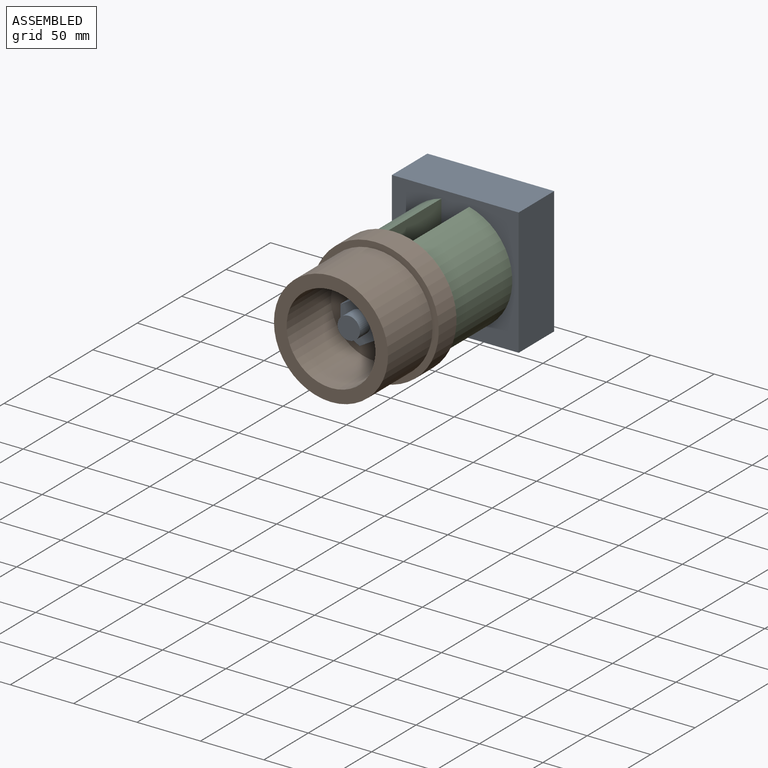
[diagram: assembled view]
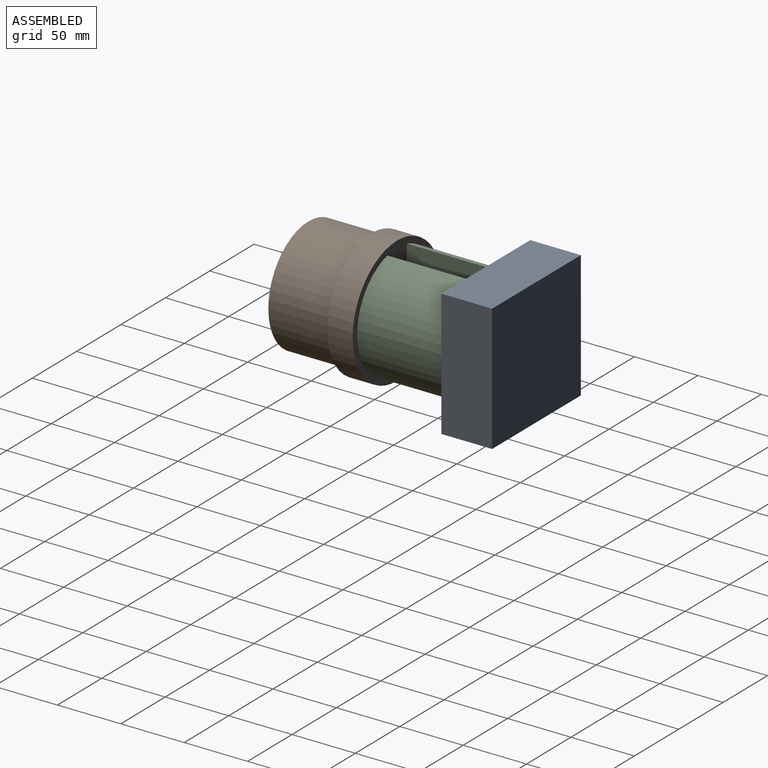
[diagram: assembled view, second angle]
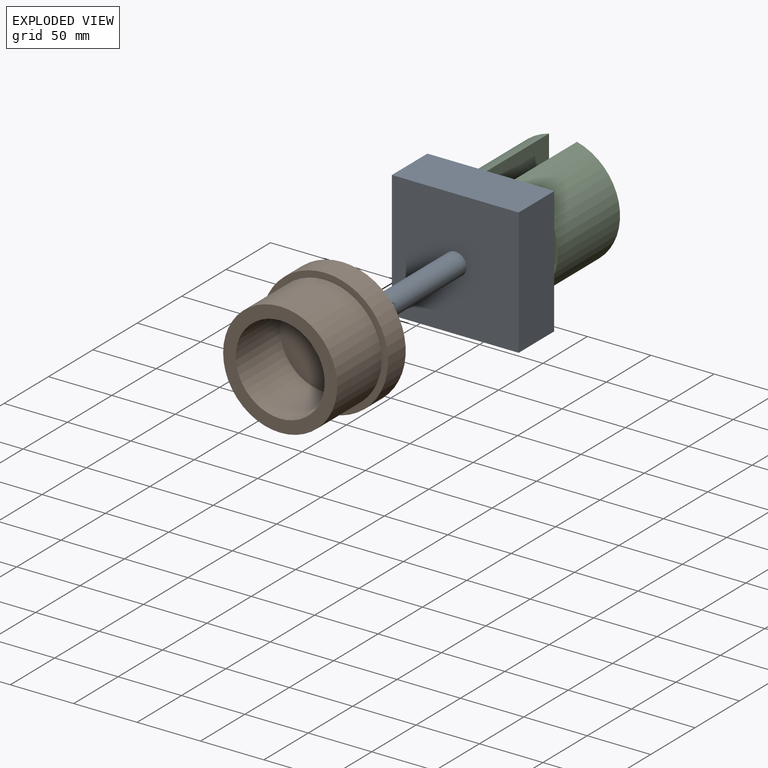
[diagram: exploded view]
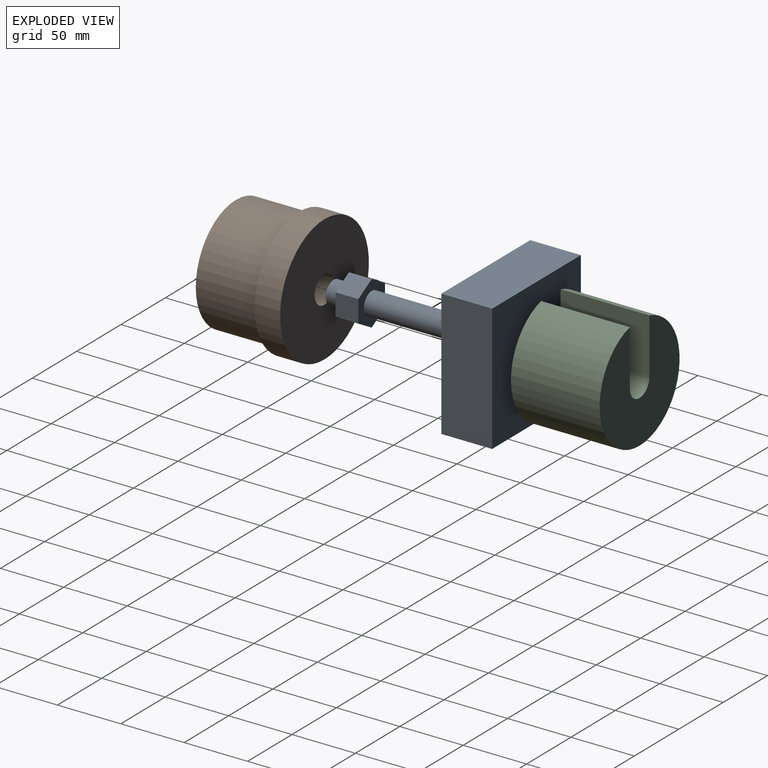
[diagram: exploded view, second angle]
ASSEMBLY  parts=3 mates=4
PART A: 17 faces, bbox 100x160x100 mm
  f0: cylinder r=8.83mm len=90mm, axis (0,1,0), area 4991.8mm2, adj f6,f14
  f1: plane 100x40mm, normal (-1,0,0), area 4000mm2, adj f2,f4,f5,f6
  f2: plane 100x40mm, normal (0,0,-1), area 4000mm2, adj f1,f3,f5,f6
  f3: plane 100x40mm, normal (1,0,0), area 4000mm2, adj f2,f4,f5,f6
  f4: plane 100x40mm, normal (0,0,1), area 4000mm2, adj f1,f3,f5,f6
  f5: plane 100x100mm, normal (0,1,0), area 10000mm2, adj f1,f2,f3,f4
  f6: plane 100x100mm, normal (0,-1,0), area 9755.2mm2, adj f0,f1,f2,f3,f4
  f7: plane 18x15.03mm, normal (0.5,0,0.87), area 311.8mm2, adj f8,f12,f13,f14
  f8: plane 18x14.97mm, normal (-0.5,0,0.86), area 311.8mm2, adj f7,f9,f13,f14
  f9: plane 18x17.32mm, normal (-1,0,0), area 311.8mm2, adj f8,f10,f13,f14
  f10: plane 18x15.03mm, normal (-0.5,0,-0.87), area 311.8mm2, adj f9,f11,f13,f14
  f11: plane 18x14.97mm, normal (0.5,0,-0.86), area 311.8mm2, adj f10,f12,f13,f14
  f12: plane 18x17.32mm, normal (1,0,0), area 311.8mm2, adj f7,f11,f13,f14
  f13: plane 34.64x30.05mm, normal (0,-1,0), area 534.6mm2, adj f7,f8,f9,f10,f11,f12,f16
  f14: plane 34.64x30.05mm, normal (0,1,0), area 534.6mm2, adj f0,f7,f8,f9,f10,f11,f12
  f15: plane 17.66x17.66mm, normal (0,-1,0), area 244.8mm2, adj f16
  f16: cylinder r=8.83mm len=17.66mm, axis (0,1,0), area 665.6mm2, adj f13,f15
PART B: 8 faces, bbox 100x70x100 mm
  f0: plane 70x70mm, normal (0,-1,0), area 3468.3mm2, adj f1,f5
  f1: cylinder r=11mm len=22mm, axis (0,1,0), area 1382.3mm2, adj f0,f4
  f2: cylinder r=50mm len=100mm, axis (0,1,0), area 6283.2mm2, adj f3,f4
  f3: plane 100x100mm, normal (0,-1,0), area 1492.3mm2, adj f2,f6
  f4: plane 100x100mm, normal (0,1,0), area 7473.8mm2, adj f1,f2
  f5: cylinder r=35mm len=70mm, axis (0,1,0), area 10995.6mm2, adj f0,f7
  f6: cylinder r=45mm len=90mm, axis (0,1,0), area 14137.2mm2, adj f3,f7
  f7: plane 90x90mm, normal (0,-1,0), area 2513.3mm2, adj f5,f6
PART C: 6 faces, bbox 90x70x88.6 mm
  f0: cylinder r=11mm len=70mm, axis (0,1,0), area 2419mm2, adj f1,f3,f4,f5
  f1: plane 70x43.64mm, normal (1,0,0), area 3054.4mm2, adj f0,f2,f4,f5
  f2: cylinder r=45mm len=90mm, axis (0,1,0), area 18236.3mm2, adj f1,f3,f4,f5
  f3: plane 70x43.64mm, normal (-1,0,0), area 3054.4mm2, adj f0,f2,f4,f5
  f4: plane 90x88.64mm, normal (0,-1,0), area 5191.6mm2, adj f0,f1,f2,f3
  f5: plane 90x88.64mm, normal (0,1,0), area 5191.6mm2, adj f0,f1,f2,f3
PLACE A t=(17.39,5,-126.88)mm
PLACE B rot(axis=(0,-1,0),180deg) t=(17.39,-65,-126.88)mm
PLACE C t=(17.39,5,-126.88)mm
MATE cylindrical C.f2 <-> A.f0  axis (0,1,0) through (17.39,-30,-126.88)mm
MATE cylindrical A.f0 <-> B.f6  axis (0,1,0) through (17.39,-40,-126.88)mm
MATE planar B.f5 <-> A.f0  axis (0,-1,0) through (17.39,-85,-126.88)mm
MATE planar C.f2 <-> A.f0  axis (0,1,0) through (17.39,5,-126.88)mm
